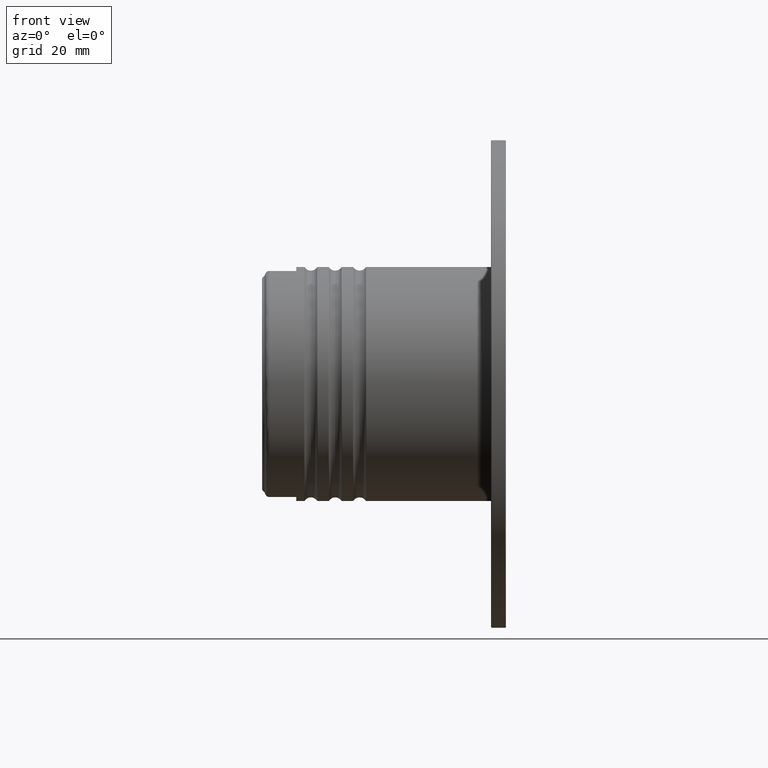
[diagram: clean part render]
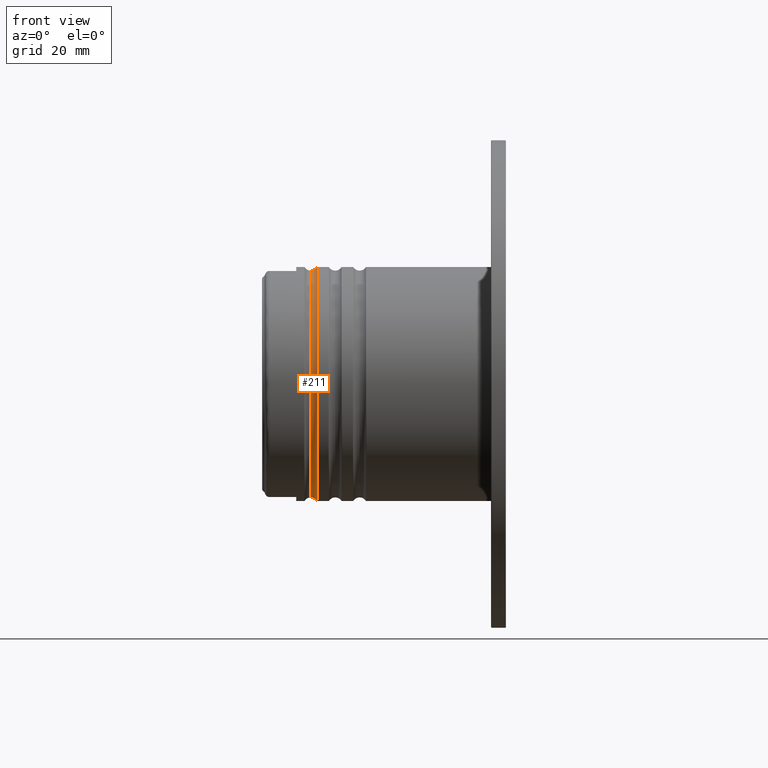
[diagram: same view with one face highlighted and labeled with its STEP entity id]
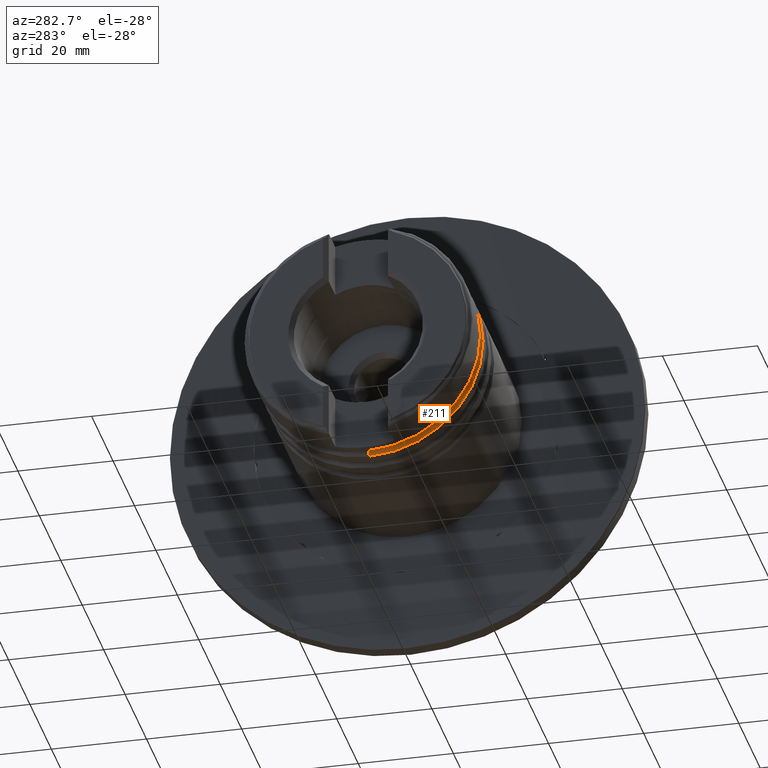
[diagram: same view with one face highlighted and labeled with its STEP entity id]
A machine part, front view. The second image highlights one B-rep face of the part: STEP entity #211.
A second angle (auxiliary view) of the same face is appended — the face is thin or edge-on in the first view.
In plain terms, the highlighted toroidal blend (fillet) surface has major radius 24.75 mm and minor (blend) radius 1.5 mm.
Its self-contained STEP definition (entity closure, byte-faithful):
#211 = ADVANCED_FACE ( 'NONE', ( #5491 ), #2327, .F. ) ;
#253 = EDGE_CURVE ( 'NONE', #2524, #2889, #6774, .T. ) ;
#276 = DIRECTION ( 'NONE',  ( -0.0000000000000000000, 1.000000000000000000, 1.224646799147353207E-16 ) ) ;
#392 = CARTESIAN_POINT ( 'NONE',  ( -39.72493930000000262, 0.0000000000000000000, 24.74999999999999645 ) ) ;
#697 = CIRCLE ( 'NONE', #5784, 23.25000000000000000 ) ;
#752 = DIRECTION ( 'NONE',  ( -1.000000000000000000, -0.0000000000000000000, -0.0000000000000000000 ) ) ;
#835 = DIRECTION ( 'NONE',  ( 0.0000000000000000000, -1.224646799147352221E-16, 1.000000000000000000 ) ) ;
#876 = CARTESIAN_POINT ( 'NONE',  ( -39.72493930000000262, 0.0000000000000000000, 23.25000000000000000 ) ) ;
#947 = DIRECTION ( 'NONE',  ( -1.000000000000000000, -0.0000000000000000000, -0.0000000000000000000 ) ) ;
#1202 = ORIENTED_EDGE ( 'NONE', *, *, #253, .T. ) ;
#2106 = EDGE_LOOP ( 'NONE', ( #3367, #1202, #2611, #4173 ) ) ;
#2145 = EDGE_CURVE ( 'NONE', #2889, #2736, #3741, .T. ) ;
#2268 = AXIS2_PLACEMENT_3D ( 'NONE', #2884, #752, #5748 ) ;
#2327 = TOROIDAL_SURFACE ( 'NONE', #2268, 24.74999999999999645, 1.499999999999996891 ) ;
#2524 = VERTEX_POINT ( 'NONE', #3466 ) ;
#2549 = CARTESIAN_POINT ( 'NONE',  ( -39.72493930000000262, 0.0000000000000000000, 0.0000000000000000000 ) ) ;
#2575 = DIRECTION ( 'NONE',  ( 0.0000000000000000000, 0.0000000000000000000, 1.000000000000000000 ) ) ;
#2576 = EDGE_CURVE ( 'NONE', #2524, #6093, #697, .T. ) ;
#2611 = ORIENTED_EDGE ( 'NONE', *, *, #2145, .T. ) ;
#2669 = DIRECTION ( 'NONE',  ( 0.0000000000000000000, 0.0000000000000000000, 1.000000000000000000 ) ) ;
#2736 = VERTEX_POINT ( 'NONE', #5968 ) ;
#2884 = CARTESIAN_POINT ( 'NONE',  ( -39.72493930000000262, 0.0000000000000000000, 0.0000000000000000000 ) ) ;
#2889 = VERTEX_POINT ( 'NONE', #5186 ) ;
#3094 = DIRECTION ( 'NONE',  ( -1.000000000000000000, -0.0000000000000000000, -0.0000000000000000000 ) ) ;
#3254 = DIRECTION ( 'NONE',  ( 0.0000000000000000000, -1.000000000000000000, 0.0000000000000000000 ) ) ;
#3367 = ORIENTED_EDGE ( 'NONE', *, *, #2576, .F. ) ;
#3466 = CARTESIAN_POINT ( 'NONE',  ( -39.72493930000000262, 2.847303808017596533E-15, -23.25000000000000000 ) ) ;
#3741 = CIRCLE ( 'NONE', #6180, 23.91176470588235148 ) ;
#3945 = CIRCLE ( 'NONE', #4268, 1.499999999999997780 ) ;
#4112 = CARTESIAN_POINT ( 'NONE',  ( -39.72493930000000262, 3.031000827889698861E-15, -24.74999999999999645 ) ) ;
#4173 = ORIENTED_EDGE ( 'NONE', *, *, #6165, .F. ) ;
#4268 = AXIS2_PLACEMENT_3D ( 'NONE', #392, #3254, #4883 ) ;
#4308 = CARTESIAN_POINT ( 'NONE',  ( -38.48100940177603491, 0.0000000000000000000, 0.0000000000000000000 ) ) ;
#4883 = DIRECTION ( 'NONE',  ( 0.0000000000000000000, 0.0000000000000000000, -1.000000000000000000 ) ) ;
#5186 = CARTESIAN_POINT ( 'NONE',  ( -38.48100940177603491, 2.928346610902347781E-15, -23.91176470588235503 ) ) ;
#5491 = FACE_OUTER_BOUND ( 'NONE', #2106, .T. ) ;
#5571 = AXIS2_PLACEMENT_3D ( 'NONE', #4112, #276, #835 ) ;
#5748 = DIRECTION ( 'NONE',  ( 0.0000000000000000000, 0.0000000000000000000, 1.000000000000000000 ) ) ;
#5784 = AXIS2_PLACEMENT_3D ( 'NONE', #2549, #3094, #2575 ) ;
#5968 = CARTESIAN_POINT ( 'NONE',  ( -38.48100940177603491, 0.0000000000000000000, 23.91176470588235503 ) ) ;
#6093 = VERTEX_POINT ( 'NONE', #876 ) ;
#6165 = EDGE_CURVE ( 'NONE', #6093, #2736, #3945, .T. ) ;
#6180 = AXIS2_PLACEMENT_3D ( 'NONE', #4308, #947, #2669 ) ;
#6774 = CIRCLE ( 'NONE', #5571, 1.499999999999997780 ) ;